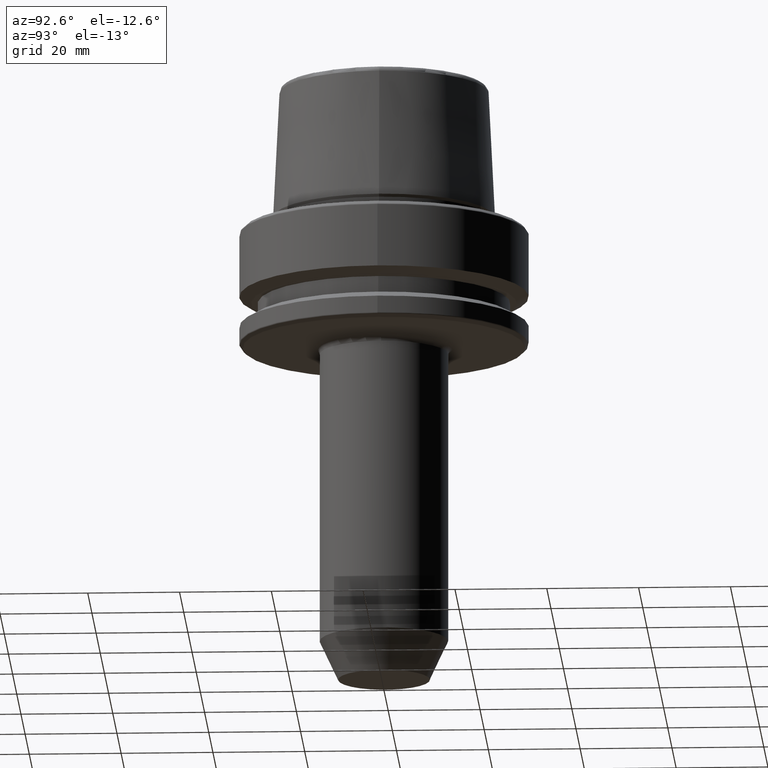
[diagram: clean part render]
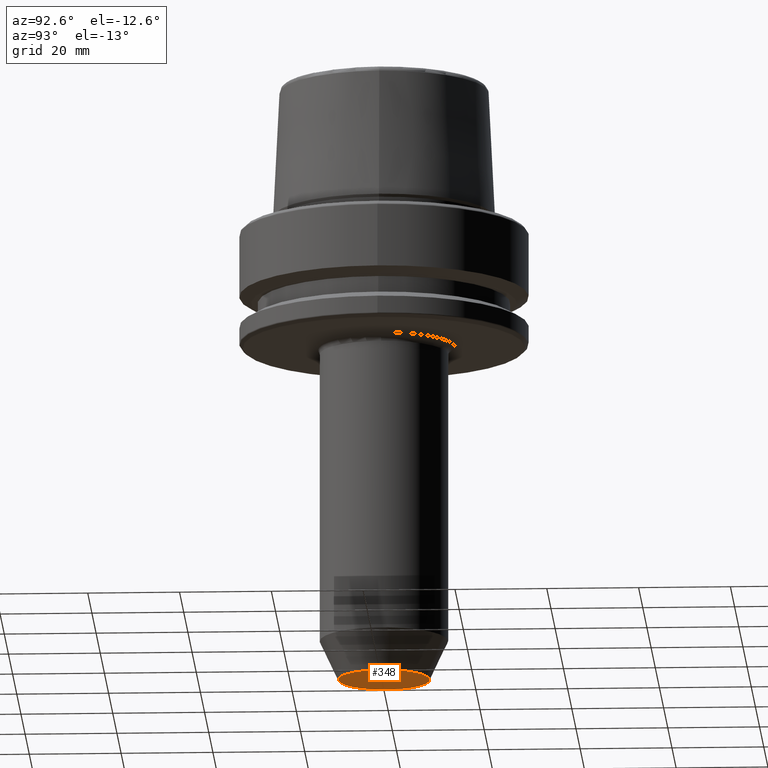
[diagram: same view with one face highlighted and labeled with its STEP entity id]
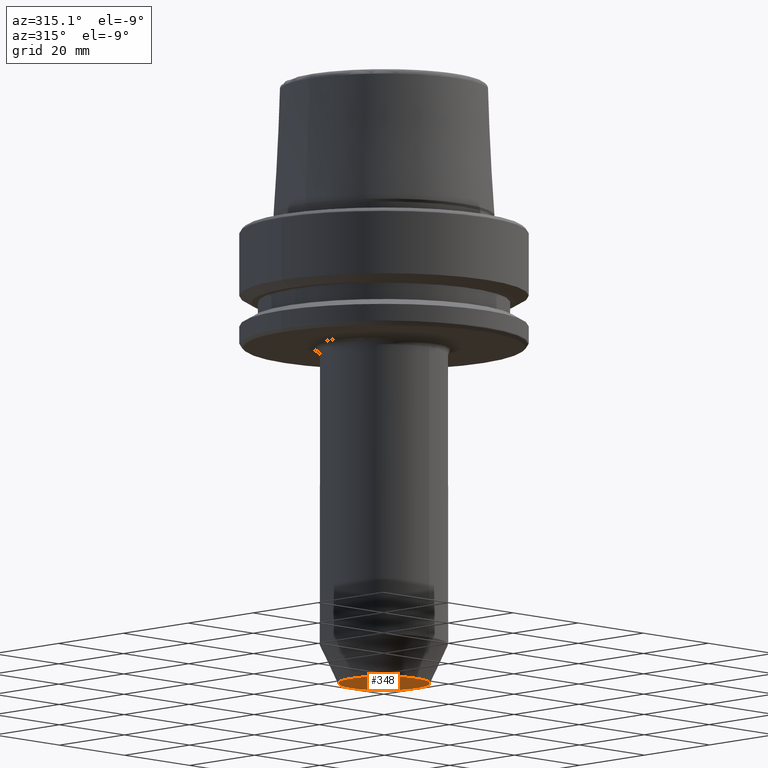
[diagram: same view with one face highlighted and labeled with its STEP entity id]
A machine part, auxiliary view. The second image highlights one B-rep face of the part: STEP entity #348.
A second angle (auxiliary view) of the same face is appended — the face is thin or edge-on in the first view.
In plain terms, the highlighted planar face has unit normal (-0, 0, -1).
Its self-contained STEP definition (entity closure, byte-faithful):
#57 = FACE_OUTER_BOUND ( 'NONE', #1225, .T. ) ;
#70 = ORIENTED_EDGE ( 'NONE', *, *, #329, .T. ) ;
#90 = AXIS2_PLACEMENT_3D ( 'NONE', #996, #752, #725 ) ;
#94 = DIRECTION ( 'NONE',  ( -0.0000000000000000000, 5.792248374345589000E-017, -1.000000000000000000 ) ) ;
#107 = EDGE_CURVE ( 'NONE', #1271, #1220, #343, .T. ) ;
#221 = AXIS2_PLACEMENT_3D ( 'NONE', #496, #94, #254 ) ;
#254 = DIRECTION ( 'NONE',  ( 0.0000000000000000000, 1.000000000000000000, 0.0000000000000000000 ) ) ;
#329 = EDGE_CURVE ( 'NONE', #1220, #1271, #581, .T. ) ;
#343 = CIRCLE ( 'NONE', #221, 9.999999999999996400 ) ;
#348 = ADVANCED_FACE ( 'NONE', ( #57 ), #391, .T. ) ;
#391 = PLANE ( 'NONE',  #90 ) ;
#407 = CARTESIAN_POINT ( 'NONE',  ( 0.0000000000000000000, -9.999999999999992900, -100.0000000000000000 ) ) ;
#496 = CARTESIAN_POINT ( 'NONE',  ( 0.0000000000000000000, 4.286263797015735700E-015, -100.0000000000000000 ) ) ;
#581 = CIRCLE ( 'NONE', #925, 9.999999999999996400 ) ;
#584 = ORIENTED_EDGE ( 'NONE', *, *, #107, .T. ) ;
#725 = DIRECTION ( 'NONE',  ( 0.0000000000000000000, 1.000000000000000000, 5.792248374345589000E-017 ) ) ;
#752 = DIRECTION ( 'NONE',  ( -0.0000000000000000000, 5.792248374345589000E-017, -1.000000000000000000 ) ) ;
#797 = CARTESIAN_POINT ( 'NONE',  ( 1.469576158976823600E-015, 10.00000000000000000, -100.0000000000000000 ) ) ;
#925 = AXIS2_PLACEMENT_3D ( 'NONE', #1233, #986, #1073 ) ;
#986 = DIRECTION ( 'NONE',  ( -0.0000000000000000000, 5.792248374345589000E-017, -1.000000000000000000 ) ) ;
#996 = CARTESIAN_POINT ( 'NONE',  ( 0.0000000000000000000, 10.00000000000000000, -100.0000000000000000 ) ) ;
#1073 = DIRECTION ( 'NONE',  ( 0.0000000000000000000, 1.000000000000000000, 0.0000000000000000000 ) ) ;
#1220 = VERTEX_POINT ( 'NONE', #797 ) ;
#1225 = EDGE_LOOP ( 'NONE', ( #584, #70 ) ) ;
#1233 = CARTESIAN_POINT ( 'NONE',  ( 0.0000000000000000000, 4.286263797015735700E-015, -100.0000000000000000 ) ) ;
#1271 = VERTEX_POINT ( 'NONE', #407 ) ;